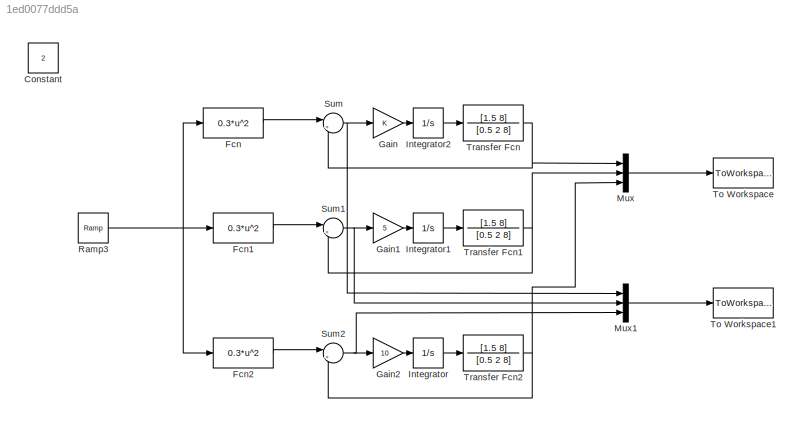
MODEL slx_1ed0077ddd5a
KIND model
BLOCK [Constant] Constant
  Value = 2
BLOCK [Fcn] Fcn
  Expr = 0.3*u^2
BLOCK [Fcn] Fcn1
  Expr = 0.3*u^2
BLOCK [Fcn] Fcn2
  Expr = 0.3*u^2
BLOCK [Gain] Gain
  OutDataTypeStr = Inherit: Inherit via internal rule
  ParamDataTypeStr = Inherit: Inherit via internal rule
  SaturateOnIntegerOverflow = off
BLOCK [Gain] Gain1
  Gain = 5
  OutDataTypeStr = Inherit: Inherit via internal rule
  ParamDataTypeStr = Inherit: Inherit via internal rule
  SaturateOnIntegerOverflow = off
BLOCK [Gain] Gain2
  Gain = 10
  OutDataTypeStr = Inherit: Inherit via internal rule
  ParamDataTypeStr = Inherit: Inherit via internal rule
  SaturateOnIntegerOverflow = off
BLOCK [Integrator] Integrator
  Ports = [1, 1]
BLOCK [Integrator] Integrator1
  Ports = [1, 1]
BLOCK [Integrator] Integrator2
  Ports = [1, 1]
BLOCK [Mux] Mux
  DisplayOption = bar
  Inputs = 3
  Ports = [3, 1]
BLOCK [Mux] Mux1
  DisplayOption = bar
  Inputs = 3
  Ports = [3, 1]
BLOCK [Reference] Ramp3  REF=simulink/Sources/Ramp
  Ports = [0, 1]
  SourceBlock = simulink/Sources/Ramp
  SourceType = Ramp
  VectorParams1D = on
  X0 = 0
  slope = 1
  start = 0
BLOCK [Sum] Sum
  IconShape = round
  InputSameDT = off
  Inputs = |+-
  OutDataTypeStr = Inherit: Inherit via internal rule
  Ports = [2, 1]
  SaturateOnIntegerOverflow = off
BLOCK [Sum] Sum1
  IconShape = round
  InputSameDT = off
  Inputs = |+-
  OutDataTypeStr = Inherit: Inherit via internal rule
  Ports = [2, 1]
  SaturateOnIntegerOverflow = off
BLOCK [Sum] Sum2
  IconShape = round
  InputSameDT = off
  Inputs = |+-
  OutDataTypeStr = Inherit: Inherit via internal rule
  Ports = [2, 1]
  SaturateOnIntegerOverflow = off
BLOCK [ToWorkspace] To Workspace
  FixptAsFi = on
  MaxDataPoints = inf
  Ports = [1]
  SampleTime = -1
  Save2DSignal = 3-D array (concatenate along third dimension)
  SaveFormat = Timeseries
  VariableName = simout
BLOCK [ToWorkspace] To Workspace1
  FixptAsFi = on
  MaxDataPoints = inf
  Ports = [1]
  SampleTime = -1
  Save2DSignal = 3-D array (concatenate along third dimension)
  SaveFormat = Timeseries
  VariableName = simout1
BLOCK [TransferFcn] Transfer Fcn
  Denominator = [0.5 2 8]
  Numerator = [1.5 8]
BLOCK [TransferFcn] Transfer Fcn1
  Denominator = [0.5 2 8]
  Numerator = [1.5 8]
BLOCK [TransferFcn] Transfer Fcn2
  Denominator = [0.5 2 8]
  Numerator = [1.5 8]
LINE Fcn1:1 -> Sum1:1
LINE Fcn2:1 -> Sum2:1
LINE Fcn:1 -> Sum:1
LINE Gain1:1 -> Integrator1:1
LINE Gain2:1 -> Integrator:1
LINE Gain:1 -> Integrator2:1
LINE Integrator1:1 -> Transfer Fcn1:1
LINE Integrator2:1 -> Transfer Fcn:1
LINE Integrator:1 -> Transfer Fcn2:1
LINE Mux1:1 -> To Workspace1:1
LINE Mux:1 -> To Workspace:1
NET Ramp3:1 -> Fcn1:1, Fcn2:1, Fcn:1
NET Sum1:1 -> Gain1:1, Mux1:2
NET Sum2:1 -> Gain2:1, Mux1:3
NET Sum:1 -> Gain:1, Mux1:1
NET Transfer Fcn1:1 -> Mux:2, Sum1:2
NET Transfer Fcn2:1 -> Mux:3, Sum2:2
NET Transfer Fcn:1 -> Mux:1, Sum:2
note: NET lines group one-source signal fan-out (src -> all destinations, sorted); 1:1 wires keep LINE
